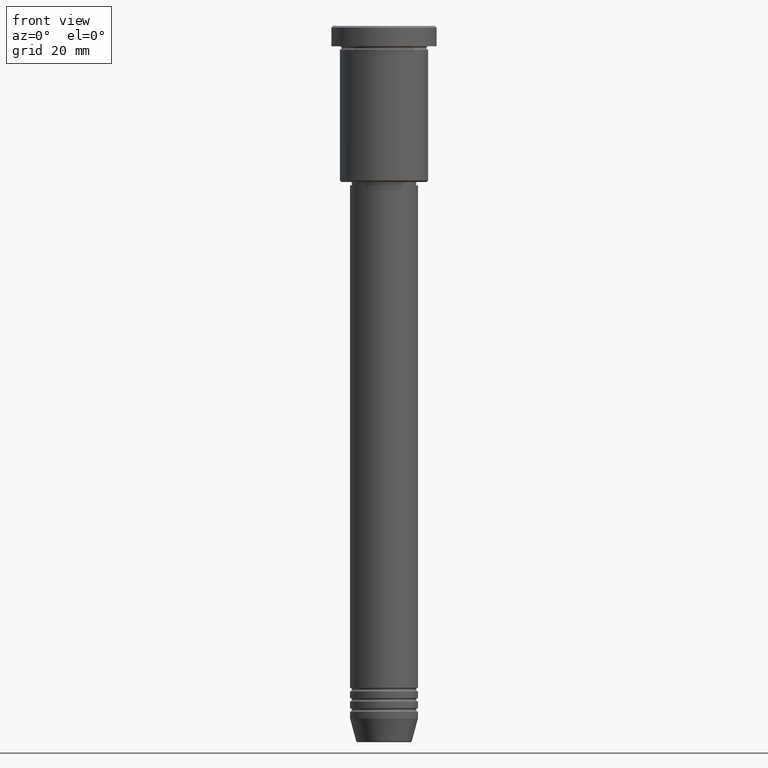
[diagram: clean part render]
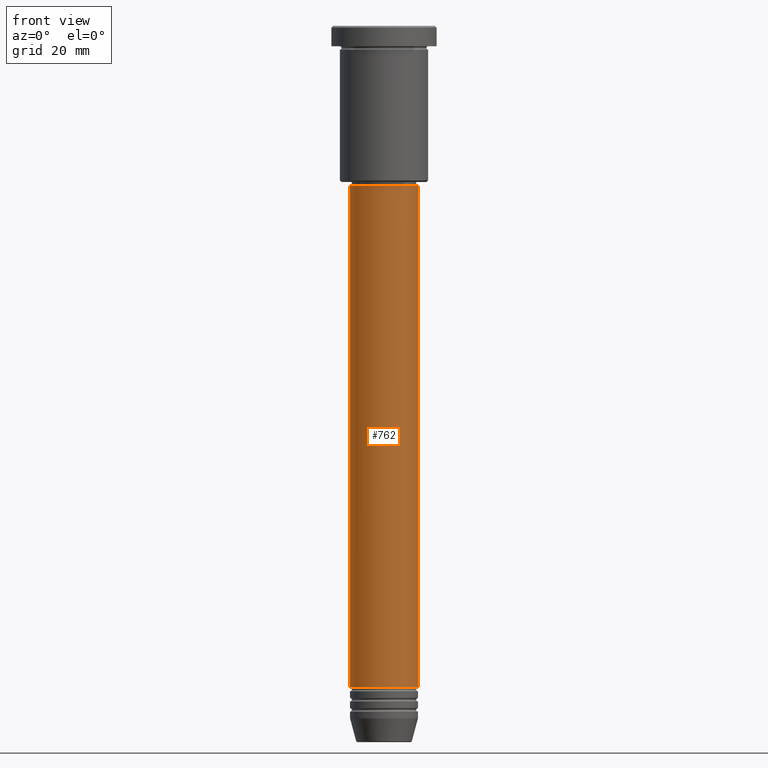
[diagram: same view with one face highlighted and labeled with its STEP entity id]
A machine part, front view. The second image highlights one B-rep face of the part: STEP entity #762.
In plain terms, the highlighted cylindrical surface (edge-blend (fillet) strip) has radius 10 mm, axis along (-0, -0, 1).
Its self-contained STEP definition (entity closure, byte-faithful):
#13 = VERTEX_POINT ( 'NONE', #1123 ) ;
#55 = EDGE_CURVE ( 'NONE', #1014, #933, #58, .T. ) ;
#58 = CIRCLE ( 'NONE', #621, 10.00000000000000000 ) ;
#75 = DIRECTION ( 'NONE',  ( -0.000000000000000000, -0.000000000000000000, 1.000000000000000000 ) ) ;
#80 = CARTESIAN_POINT ( 'NONE',  ( 0.000000000000000000, 0.000000000000000000, -195.0000000000000000 ) ) ;
#92 = LINE ( 'NONE', #359, #889 ) ;
#120 = ORIENTED_EDGE ( 'NONE', *, *, #135, .F. ) ;
#135 = EDGE_CURVE ( 'NONE', #220, #1014, #336, .T. ) ;
#206 = DIRECTION ( 'NONE',  ( 1.000000000000000000, 0.000000000000000000, 0.000000000000000000 ) ) ;
#220 = VERTEX_POINT ( 'NONE', #1023 ) ;
#234 = CARTESIAN_POINT ( 'NONE',  ( -10.00000000000000000, 1.224646799147353256E-15, -47.00000000000002132 ) ) ;
#267 = EDGE_CURVE ( 'NONE', #13, #933, #92, .T. ) ;
#270 = VECTOR ( 'NONE', #984, 1000.000000000000000 ) ;
#295 = ORIENTED_EDGE ( 'NONE', *, *, #673, .T. ) ;
#336 = LINE ( 'NONE', #1073, #270 ) ;
#359 = CARTESIAN_POINT ( 'NONE',  ( 10.00000000000000000, 0.000000000000000000, 0.000000000000000000 ) ) ;
#370 = CIRCLE ( 'NONE', #663, 10.00000000000000000 ) ;
#422 = DIRECTION ( 'NONE',  ( -0.000000000000000000, -0.000000000000000000, 1.000000000000000000 ) ) ;
#533 = DIRECTION ( 'NONE',  ( 1.000000000000000000, 0.000000000000000000, 0.000000000000000000 ) ) ;
#567 = CARTESIAN_POINT ( 'NONE',  ( 0.000000000000000000, 0.000000000000000000, 0.000000000000000000 ) ) ;
#621 = AXIS2_PLACEMENT_3D ( 'NONE', #1068, #422, #533 ) ;
#639 = CARTESIAN_POINT ( 'NONE',  ( 10.00000000000000000, 0.000000000000000000, -47.00000000000002132 ) ) ;
#661 = ORIENTED_EDGE ( 'NONE', *, *, #267, .T. ) ;
#663 = AXIS2_PLACEMENT_3D ( 'NONE', #80, #743, #723 ) ;
#673 = EDGE_CURVE ( 'NONE', #220, #13, #370, .T. ) ;
#723 = DIRECTION ( 'NONE',  ( 1.000000000000000000, 0.000000000000000000, 0.000000000000000000 ) ) ;
#743 = DIRECTION ( 'NONE',  ( -0.000000000000000000, -0.000000000000000000, 1.000000000000000000 ) ) ;
#750 = DIRECTION ( 'NONE',  ( -0.000000000000000000, -0.000000000000000000, 1.000000000000000000 ) ) ;
#762 = ADVANCED_FACE ( 'NONE', ( #840 ), #1109, .T. ) ;
#840 = FACE_OUTER_BOUND ( 'NONE', #1019, .T. ) ;
#889 = VECTOR ( 'NONE', #750, 1000.000000000000000 ) ;
#933 = VERTEX_POINT ( 'NONE', #639 ) ;
#984 = DIRECTION ( 'NONE',  ( -0.000000000000000000, -0.000000000000000000, 1.000000000000000000 ) ) ;
#1014 = VERTEX_POINT ( 'NONE', #234 ) ;
#1019 = EDGE_LOOP ( 'NONE', ( #120, #295, #661, #1024 ) ) ;
#1023 = CARTESIAN_POINT ( 'NONE',  ( -10.00000000000000000, 1.224646799147353256E-15, -195.0000000000000000 ) ) ;
#1024 = ORIENTED_EDGE ( 'NONE', *, *, #55, .F. ) ;
#1068 = CARTESIAN_POINT ( 'NONE',  ( 0.000000000000000000, 0.000000000000000000, -47.00000000000002132 ) ) ;
#1073 = CARTESIAN_POINT ( 'NONE',  ( -10.00000000000000000, 1.224646799147353256E-15, 0.000000000000000000 ) ) ;
#1109 = CYLINDRICAL_SURFACE ( 'NONE', #1172, 10.00000000000000000 ) ;
#1123 = CARTESIAN_POINT ( 'NONE',  ( 10.00000000000000000, 0.000000000000000000, -195.0000000000000000 ) ) ;
#1172 = AXIS2_PLACEMENT_3D ( 'NONE', #567, #75, #206 ) ;